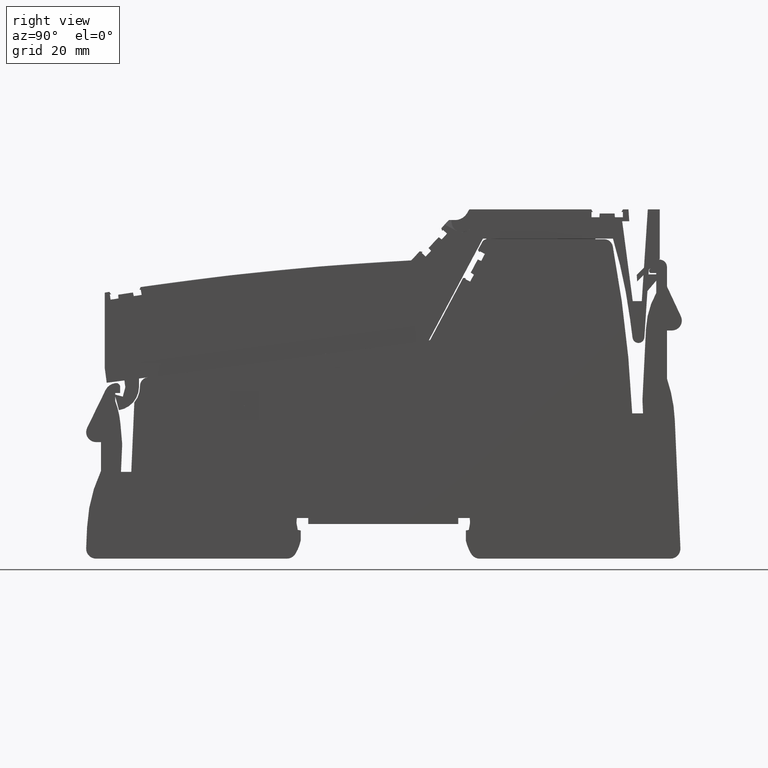
[diagram: clean part render]
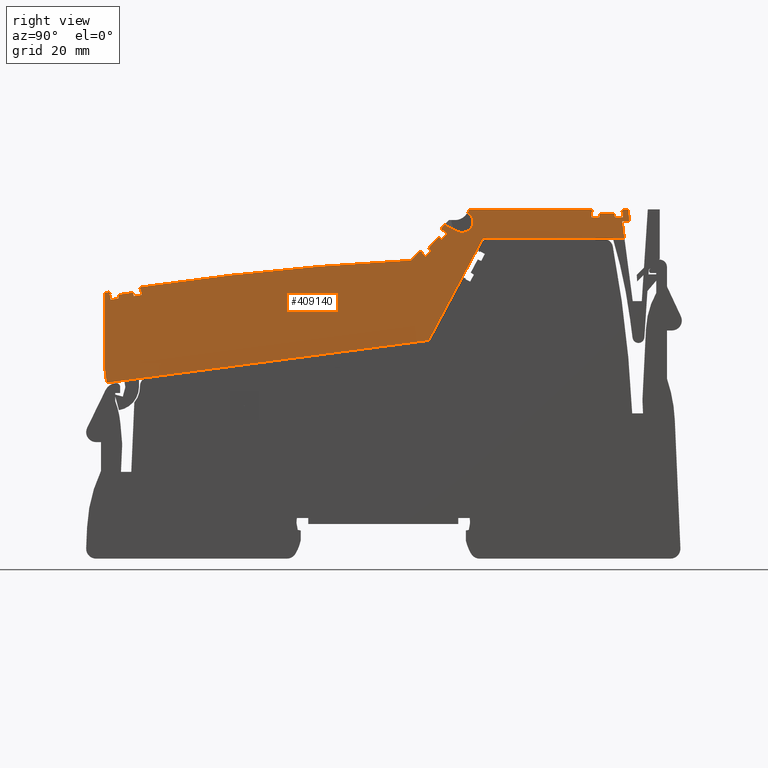
[diagram: same view with one face highlighted and labeled with its STEP entity id]
A machine part, right view. The second image highlights one B-rep face of the part: STEP entity #409140.
In plain terms, the highlighted planar face has unit normal (1, -0, 0).
Its self-contained STEP definition (entity closure, byte-faithful):
#405040=CARTESIAN_POINT('',(82.6815349965882,79.1094320933787,-35.425));
#405050=DIRECTION('',(0.,-0.,1.));
#405060=DIRECTION('',(0.99144486137381,0.130526192220052,0.));
#405070=AXIS2_PLACEMENT_3D('',#405040,#405050,#405060);
#405080=PLANE('',#405070);
#405090=CARTESIAN_POINT('',(7.105427357601E-15,123.952271663143,-35.425)
);
#405100=DIRECTION('',(0.887010833178214,-0.461748613235049,0.));
#405110=VECTOR('',#405100,1.);
#405120=LINE('',#405090,#405110);
#405130=CARTESIAN_POINT('',(81.7124060542132,81.4154854500133,-35.425));
#405140=VERTEX_POINT('',#405130);
#405150=CARTESIAN_POINT('',(84.2556033003072,80.0915807606427,-35.425));
#405160=VERTEX_POINT('',#405150);
#405170=EDGE_CURVE('',#405140,#405160,#405120,.T.);
#405180=ORIENTED_EDGE('',*,*,#405170,.F.);
#405190=CARTESIAN_POINT('',(85.2483628187626,81.9986540519759,-35.425));
#405200=DIRECTION('',(-8.85927774418128E-33,0.,1.));
#405210=DIRECTION('',(0.99144486137381,0.130526192220052,
8.7834853949519E-33));
#405220=AXIS2_PLACEMENT_3D('',#405190,#405200,#405210);
#405230=CIRCLE('',#405220,2.15000000000011);
#405240=CARTESIAN_POINT('',(86.323362818763,83.8606086701124,-35.425));
#405250=VERTEX_POINT('',#405240);
#405260=EDGE_CURVE('',#405160,#405250,#405230,.T.);
#405270=ORIENTED_EDGE('',*,*,#405260,.F.);
#405280=CARTESIAN_POINT('',(37.9064178286642,1.4210854715202E-14,-35.425
));
#405290=DIRECTION('',(-0.500000000000028,-0.866025403784423,0.));
#405300=VECTOR('',#405290,1.);
#405310=LINE('',#405280,#405300);
#405320=CARTESIAN_POINT('',(86.6847904689085,84.4866197234246,-35.425));
#405330=VERTEX_POINT('',#405320);
#405340=EDGE_CURVE('',#405330,#405250,#405310,.T.);
#405350=ORIENTED_EDGE('',*,*,#405340,.T.);
#405360=CARTESIAN_POINT('',(7.105427357601E-15,84.4866197234246,-35.425)
);
#405370=DIRECTION('',(-1.,0.,0.));
#405380=VECTOR('',#405370,1.);
#405390=LINE('',#405360,#405380);
#405400=CARTESIAN_POINT('',(111.280097074187,84.4866197234246,-35.425));
#405410=VERTEX_POINT('',#405400);
#405420=EDGE_CURVE('',#405410,#405330,#405390,.T.);
#405430=ORIENTED_EDGE('',*,*,#405420,.T.);
#405440=CARTESIAN_POINT('',(117.476804588516,73.7536074689866,-35.425));
#405450=DIRECTION('',(0.500000000000819,-0.866025403783966,
3.34767537788399E-17));
#405460=VECTOR('',#405450,1.);
#405470=LINE('',#405440,#405460);
#405480=CARTESIAN_POINT('',(111.586092716858,83.9566197234264,-35.425));
#405490=VERTEX_POINT('',#405480);
#405500=EDGE_CURVE('',#405410,#405490,#405470,.T.);
#405510=ORIENTED_EDGE('',*,*,#405500,.F.);
#405520=CARTESIAN_POINT('',(70.5167661636283,83.9566197232154,-35.425));
#405530=DIRECTION('',(-1.,-5.1373627574236E-12,-1.14423563262215E-17));
#405540=VECTOR('',#405530,1.);
#405550=LINE('',#405520,#405540);
#405560=CARTESIAN_POINT('',(111.313785095723,83.956619723425,-35.425));
#405570=VERTEX_POINT('',#405560);
#405580=EDGE_CURVE('',#405490,#405570,#405550,.T.);
#405590=ORIENTED_EDGE('',*,*,#405580,.F.);
#405600=CARTESIAN_POINT('',(111.313785095715,1.4210854715202E-14,-35.425
));
#405610=DIRECTION('',(-9.34252675222069E-14,-1.,0.));
#405620=VECTOR('',#405610,1.);
#405630=LINE('',#405600,#405620);
#405640=CARTESIAN_POINT('',(111.313785095723,82.8866197234248,-35.425));
#405650=VERTEX_POINT('',#405640);
#405660=EDGE_CURVE('',#405570,#405650,#405630,.T.);
#405670=ORIENTED_EDGE('',*,*,#405660,.F.);
#405680=CARTESIAN_POINT('',(7.105427357601E-15,82.8866197234116,-35.425)
);
#405690=DIRECTION('',(1.,1.19154686117895E-13,0.));
#405700=VECTOR('',#405690,1.);
#405710=LINE('',#405680,#405700);
#405720=CARTESIAN_POINT('',(112.910668598078,82.886619723425,-35.425));
#405730=VERTEX_POINT('',#405720);
#405740=EDGE_CURVE('',#405650,#405730,#405710,.T.);
#405750=ORIENTED_EDGE('',*,*,#405740,.F.);
#405760=CARTESIAN_POINT('',(105.659029014286,1.4210854715202E-14,-35.425
));
#405770=DIRECTION('',(0.087155742747754,0.996194698091737,0.));
#405780=VECTOR('',#405770,1.);
#405790=LINE('',#405760,#405780);
#405800=CARTESIAN_POINT('',(112.976285095723,83.6366197234249,-35.425));
#405810=VERTEX_POINT('',#405800);
#405820=EDGE_CURVE('',#405730,#405810,#405790,.T.);
#405830=ORIENTED_EDGE('',*,*,#405820,.F.);
#405840=CARTESIAN_POINT('',(70.5588949628286,83.6366197234257,-35.425));
#405850=DIRECTION('',(1.,-1.86795023893183E-14,1.14423563262215E-17));
#405860=VECTOR('',#405850,1.);
#405870=LINE('',#405840,#405860);
#405880=CARTESIAN_POINT('',(115.976285095723,83.6366197234249,-35.425));
#405890=VERTEX_POINT('',#405880);
#405900=EDGE_CURVE('',#405810,#405890,#405870,.T.);
#405910=ORIENTED_EDGE('',*,*,#405900,.F.);
#405920=CARTESIAN_POINT('',(123.293541177125,1.4210854715202E-14,-35.425
));
#405930=DIRECTION('',(0.0871557427473462,-0.996194698091773,0.));
#405940=VECTOR('',#405930,1.);
#405950=LINE('',#405920,#405940);
#405960=CARTESIAN_POINT('',(116.041901593367,82.8866197234248,-35.425));
#405970=VERTEX_POINT('',#405960);
#405980=EDGE_CURVE('',#405890,#405970,#405950,.T.);
#405990=ORIENTED_EDGE('',*,*,#405980,.F.);
#406000=CARTESIAN_POINT('',(7.105427357601E-15,82.8866197234154,-35.425)
);
#406010=DIRECTION('',(1.,8.06021915877864E-14,0.));
#406020=VECTOR('',#406010,1.);
#406030=LINE('',#406000,#406020);
#406040=CARTESIAN_POINT('',(117.638785095723,82.8866197234249,-35.425));
#406050=VERTEX_POINT('',#406040);
#406060=EDGE_CURVE('',#405970,#406050,#406030,.T.);
#406070=ORIENTED_EDGE('',*,*,#406060,.F.);
#406080=CARTESIAN_POINT('',(117.638785095727,1.4210854715202E-14,-35.425
));
#406090=DIRECTION('',(-5.49282841433296E-14,1.,0.));
#406100=VECTOR('',#406090,1.);
#406110=LINE('',#406080,#406100);
#406120=CARTESIAN_POINT('',(117.638785095723,83.9566197234248,-35.425));
#406130=VERTEX_POINT('',#406120);
#406140=EDGE_CURVE('',#406050,#406130,#406110,.T.);
#406150=ORIENTED_EDGE('',*,*,#406140,.F.);
#406160=CARTESIAN_POINT('',(70.5167661635693,83.9566197236636,-35.425));
#406170=DIRECTION('',(-1.,5.06689135093552E-12,-1.14423563262215E-17));
#406180=VECTOR('',#406170,1.);
#406190=LINE('',#406160,#406180);
#406200=CARTESIAN_POINT('',(117.366477474588,83.9566197234262,-35.425));
#406210=VERTEX_POINT('',#406200);
#406220=EDGE_CURVE('',#406130,#406210,#406190,.T.);
#406230=ORIENTED_EDGE('',*,*,#406220,.F.);
#406240=CARTESIAN_POINT('',(110.982106139763,72.8985641971313,-35.425));
#406250=DIRECTION('',(0.500000000000253,0.866025403784292,
-2.20343974524871E-17));
#406260=VECTOR('',#406250,1.);
#406270=LINE('',#406240,#406260);
#406280=CARTESIAN_POINT('',(117.672473117258,84.4866197234247,-35.425));
#406290=VERTEX_POINT('',#406280);
#406300=EDGE_CURVE('',#406210,#406290,#406270,.T.);
#406310=ORIENTED_EDGE('',*,*,#406300,.F.);
#406320=CARTESIAN_POINT('',(70.4469903398795,84.4866197234245,-35.425));
#406330=DIRECTION('',(-1.,-3.33066907387547E-15,-1.14423563262215E-17));
#406340=VECTOR('',#406330,1.);
#406350=LINE('',#406320,#406340);
#406360=CARTESIAN_POINT('',(118.776285095723,84.4866197234247,-35.425));
#406370=VERTEX_POINT('',#406360);
#406380=EDGE_CURVE('',#406370,#406290,#406350,.T.);
#406390=ORIENTED_EDGE('',*,*,#406380,.T.);
#406400=CARTESIAN_POINT('',(119.46262829087,74.0150461191697,-35.425));
#406410=DIRECTION('',(-0.0654031292301207,0.997858923238605,
-1.07067800097519E-18));
#406420=VECTOR('',#406410,1.);
#406430=LINE('',#406400,#406420);
#406440=CARTESIAN_POINT('',(118.933589406479,82.0866197234258,-35.425));
#406450=VERTEX_POINT('',#406440);
#406460=EDGE_CURVE('',#406450,#406370,#406430,.T.);
#406470=ORIENTED_EDGE('',*,*,#406460,.T.);
#406480=CARTESIAN_POINT('',(70.7629563340898,82.0866197234204,-35.425));
#406490=DIRECTION('',(-1.,-1.11688436277291E-13,-1.14423563262215E-17));
#406500=VECTOR('',#406490,1.);
#406510=LINE('',#406480,#406500);
#406520=CARTESIAN_POINT('',(117.512908656979,82.0866197234256,-35.425));
#406530=VERTEX_POINT('',#406520);
#406540=EDGE_CURVE('',#406450,#406530,#406510,.T.);
#406550=ORIENTED_EDGE('',*,*,#406540,.F.);
#406560=CARTESIAN_POINT('',(128.319817162075,1.4210854715202E-14,-35.425
));
#406570=DIRECTION('',(0.130526192220052,-0.99144486137381,0.));
#406580=VECTOR('',#406570,1.);
#406590=LINE('',#406560,#406580);
#406600=CARTESIAN_POINT('',(117.973692398535,78.5866197234247,-35.425));
#406610=VERTEX_POINT('',#406600);
#406620=EDGE_CURVE('',#406530,#406610,#406590,.T.);
#406630=ORIENTED_EDGE('',*,*,#406620,.F.);
#406640=CARTESIAN_POINT('',(71.2237400756451,78.5866197234246,-35.425));
#406650=DIRECTION('',(1.,0.,1.14423563262215E-17));
#406660=VECTOR('',#406650,1.);
#406670=LINE('',#406640,#406660);
#406680=CARTESIAN_POINT('',(89.4233780495348,78.5866197234247,-35.425));
#406690=VERTEX_POINT('',#406680);
#406700=EDGE_CURVE('',#406690,#406610,#406670,.T.);
#406710=ORIENTED_EDGE('',*,*,#406700,.T.);
#406720=CARTESIAN_POINT('',(84.5486179871549,69.4185294618935,-35.425));
#406730=DIRECTION('',(0.469471562785891,0.882947592858927,
1.98252351633153E-18));
#406740=VECTOR('',#406730,1.);
#406750=LINE('',#406720,#406740);
#406760=CARTESIAN_POINT('',(78.5141517634814,58.0693491307922,-35.425));
#406770=VERTEX_POINT('',#406760);
#406780=EDGE_CURVE('',#406770,#406690,#406750,.T.);
#406790=ORIENTED_EDGE('',*,*,#406780,.T.);
#406800=CARTESIAN_POINT('',(74.0030776442306,57.4754549561903,-35.425));
#406810=DIRECTION('',(0.991444861373789,0.130526192220212,
2.03025052721141E-32));
#406820=VECTOR('',#406810,1.);
#406830=LINE('',#406800,#406820);
#406840=CARTESIAN_POINT('',(13.5745133434982,49.5198835403683,-35.425));
#406850=VERTEX_POINT('',#406840);
#406860=EDGE_CURVE('',#406850,#406770,#406830,.T.);
#406870=ORIENTED_EDGE('',*,*,#406860,.T.);
#406880=CARTESIAN_POINT('',(12.2086310606799,59.8947895075835,-35.425));
#406890=DIRECTION('',(0.130526192220052,-0.99144486137381,
-3.08148791101958E-32));
#406900=VECTOR('',#406890,1.);
#406910=LINE('',#406880,#406900);
#406920=CARTESIAN_POINT('',(13.1829347668366,52.4942181245002,-35.425));
#406930=VERTEX_POINT('',#406920);
#406940=EDGE_CURVE('',#406930,#406850,#406910,.T.);
#406950=ORIENTED_EDGE('',*,*,#406940,.T.);
#406960=CARTESIAN_POINT('',(13.1829347668366,60.0230590239077,-35.425));
#406970=DIRECTION('',(8.32667268468867E-17,-1.,-1.38777878078145E-17));
#406980=VECTOR('',#406970,1.);
#406990=LINE('',#406960,#406980);
#407000=CARTESIAN_POINT('',(13.1829347668366,67.7012444287141,-35.425));
#407010=VERTEX_POINT('',#407000);
#407020=EDGE_CURVE('',#407010,#406930,#406990,.T.);
#407030=ORIENTED_EDGE('',*,*,#407020,.T.);
#407040=CARTESIAN_POINT('',(104.084452057128,-500.06799932646,-35.425));
#407050=DIRECTION('',(-8.85927774418128E-33,0.,1.));
#407060=DIRECTION('',(0.99144486137381,0.130526192220052,0.));
#407070=AXIS2_PLACEMENT_3D('',#407040,#407050,#407060);
#407080=CIRCLE('',#407070,575.);
#407090=CARTESIAN_POINT('',(14.0966316585303,67.8467761283694,-35.425));
#407100=VERTEX_POINT('',#407090);
#407110=EDGE_CURVE('',#407100,#407010,#407080,.T.);
#407120=ORIENTED_EDGE('',*,*,#407110,.T.);
#407130=CARTESIAN_POINT('',(19.676851164994,60.8779993368489,-35.425));
#407140=DIRECTION('',(0.625050010517978,-0.780584706711242,
2.1035385032723E-17));
#407150=VECTOR('',#407140,1.);
#407160=LINE('',#407130,#407150);
#407170=CARTESIAN_POINT('',(14.472765890979,67.3770463074278,-35.425));
#407180=VERTEX_POINT('',#407170);
#407190=EDGE_CURVE('',#407100,#407180,#407160,.T.);
#407200=ORIENTED_EDGE('',*,*,#407190,.F.);
#407210=CARTESIAN_POINT('',(71.551517232091,76.0969050392932,-35.425));
#407220=DIRECTION('',(-0.988531191076977,-0.151016834385886,
3.70508301110601E-19));
#407230=VECTOR('',#407220,1.);
#407240=LINE('',#407210,#407230);
#407250=CARTESIAN_POINT('',(14.2035813139184,67.335923272505,-35.425));
#407260=VERTEX_POINT('',#407250);
#407270=EDGE_CURVE('',#407180,#407260,#407240,.T.);
#407280=ORIENTED_EDGE('',*,*,#407270,.F.);
#407290=CARTESIAN_POINT('',(24.4904170405679,1.4210854715202E-14,-35.425
));
#407300=DIRECTION('',(0.151016834388983,-0.988531191076503,0.));
#407310=VECTOR('',#407300,1.);
#407320=LINE('',#407290,#407310);
#407330=CARTESIAN_POINT('',(14.3651693267146,66.278194898053,-35.425));
#407340=VERTEX_POINT('',#407330);
#407350=EDGE_CURVE('',#407260,#407340,#407320,.T.);
#407360=ORIENTED_EDGE('',*,*,#407350,.F.);
#407370=CARTESIAN_POINT('',(7.105427357601E-15,64.0836436114932,-35.425)
);
#407380=DIRECTION('',(0.988531191076512,0.151016834388925,0.));
#407390=VECTOR('',#407380,1.);
#407400=LINE('',#407370,#407390);
#407410=CARTESIAN_POINT('',(15.9437384773084,66.5193511894665,-35.425));
#407420=VERTEX_POINT('',#407410);
#407430=EDGE_CURVE('',#407340,#407420,#407400,.T.);
#407440=ORIENTED_EDGE('',*,*,#407430,.F.);
#407450=CARTESIAN_POINT('',(20.2288651749482,1.4210854715202E-14,-35.425
));
#407460=DIRECTION('',(-0.0642859995531953,0.997931515817316,0.));
#407470=VECTOR('',#407460,1.);
#407480=LINE('',#407450,#407470);
#407490=CARTESIAN_POINT('',(15.8953398060877,67.2706587785318,-35.425));
#407500=VERTEX_POINT('',#407490);
#407510=EDGE_CURVE('',#407420,#407500,#407480,.T.);
#407520=ORIENTED_EDGE('',*,*,#407510,.F.);
#407530=CARTESIAN_POINT('',(71.5932945613604,75.7795747186763,-35.425));
#407540=DIRECTION('',(0.988531191076507,0.151016834388962,
-3.70508301168148E-19));
#407550=VECTOR('',#407540,1.);
#407560=LINE('',#407530,#407550);
#407570=CARTESIAN_POINT('',(18.8609333793172,67.7237092816987,-35.425));
#407580=VERTEX_POINT('',#407570);
#407590=EDGE_CURVE('',#407500,#407580,#407560,.T.);
#407600=ORIENTED_EDGE('',*,*,#407590,.F.);
#407610=CARTESIAN_POINT('',(35.352486206355,1.4210854715202E-14,-35.425)
);
#407620=DIRECTION('',(0.236598339928087,-0.971607547080236,0.));
#407630=VECTOR('',#407620,1.);
#407640=LINE('',#407610,#407630);
#407650=CARTESIAN_POINT('',(19.0390599596794,66.9922200841493,-35.425));
#407660=VERTEX_POINT('',#407650);
#407670=EDGE_CURVE('',#407580,#407660,#407640,.T.);
#407680=ORIENTED_EDGE('',*,*,#407670,.F.);
#407690=CARTESIAN_POINT('',(7.105427357601E-15,64.0836436114918,-35.425)
);
#407700=DIRECTION('',(0.9885311910765,0.151016834389004,0.));
#407710=VECTOR('',#407700,1.);
#407720=LINE('',#407690,#407710);
#407730=CARTESIAN_POINT('',(20.6176291102735,67.2333763755631,-35.425));
#407740=VERTEX_POINT('',#407730);
#407750=EDGE_CURVE('',#407660,#407740,#407720,.T.);
#407760=ORIENTED_EDGE('',*,*,#407750,.F.);
#407770=CARTESIAN_POINT('',(30.8887988590628,1.4210854715202E-14,-35.425
));
#407780=DIRECTION('',(-0.15101683438897,0.988531191076505,0.));
#407790=VECTOR('',#407780,1.);
#407800=LINE('',#407770,#407790);
#407810=CARTESIAN_POINT('',(20.4560410974773,68.2911047500148,-35.425));
#407820=VERTEX_POINT('',#407810);
#407830=EDGE_CURVE('',#407740,#407820,#407800,.T.);
#407840=ORIENTED_EDGE('',*,*,#407830,.F.);
#407850=CARTESIAN_POINT('',(71.5515172321112,76.0969050391398,-35.425));
#407860=DIRECTION('',(-0.988531191077486,-0.151016834382553,
3.70508301048238E-19));
#407870=VECTOR('',#407860,1.);
#407880=LINE('',#407850,#407870);
#407890=CARTESIAN_POINT('',(20.186856520418,68.2499817150929,-35.425));
#407900=VERTEX_POINT('',#407890);
#407910=EDGE_CURVE('',#407820,#407900,#407880,.T.);
#407920=ORIENTED_EDGE('',*,*,#407910,.F.);
#407930=CARTESIAN_POINT('',(17.182413559422,60.5496003959994,-35.425));
#407940=DIRECTION('',(0.363481180558057,0.931601541100122,
-1.0997552478088E-17));
#407950=VECTOR('',#407940,1.);
#407960=LINE('',#407930,#407950);
#407970=CARTESIAN_POINT('',(20.4055873620426,68.8105884260946,-35.425));
#407980=VERTEX_POINT('',#407970);
#407990=EDGE_CURVE('',#407900,#407980,#407960,.T.);
#408000=ORIENTED_EDGE('',*,*,#407990,.F.);
#408010=CARTESIAN_POINT('',(104.084452057128,-500.06799932646,-35.425));
#408020=DIRECTION('',(-8.85927774418128E-33,0.,1.));
#408030=DIRECTION('',(0.99144486137381,0.130526192220052,0.));
#408040=AXIS2_PLACEMENT_3D('',#408010,#408020,#408030);
#408050=CIRCLE('',#408040,575.);
#408060=CARTESIAN_POINT('',(74.9791020504755,74.1949009213182,-35.425));
#408070=VERTEX_POINT('',#408060);
#408080=EDGE_CURVE('',#408070,#407980,#408050,.T.);
#408090=ORIENTED_EDGE('',*,*,#408080,.T.);
#408100=CARTESIAN_POINT('',(72.1949828292245,71.2092985834693,-35.425));
#408110=DIRECTION('',(-0.681998360062363,-0.731353701619297,
-2.53969612628868E-19));
#408120=VECTOR('',#408110,1.);
#408130=LINE('',#408100,#408120);
#408140=CARTESIAN_POINT('',(76.688235497364,76.0277221510188,-35.425));
#408150=VERTEX_POINT('',#408140);
#408160=EDGE_CURVE('',#408150,#408070,#408130,.T.);
#408170=ORIENTED_EDGE('',*,*,#408160,.T.);
#408180=CARTESIAN_POINT('',(71.3998893619735,77.248633057342,-35.425));
#408190=DIRECTION('',(0.974370064785244,-0.224951054343824,
3.6059170670998E-17));
#408200=VECTOR('',#408190,1.);
#408210=LINE('',#408180,#408200);
#408220=CARTESIAN_POINT('',(77.2845414857078,75.8900540661325,-35.425));
#408230=VERTEX_POINT('',#408220);
#408240=EDGE_CURVE('',#408150,#408230,#408210,.T.);
#408250=ORIENTED_EDGE('',*,*,#408240,.F.);
#408260=CARTESIAN_POINT('',(72.2846363775469,70.5283122750789,-35.425));
#408270=DIRECTION('',(-0.681998360064581,-0.731353701617229,
-2.53969612900505E-19));
#408280=VECTOR('',#408270,1.);
#408290=LINE('',#408260,#408280);
#408300=CARTESIAN_POINT('',(77.0988281346601,75.6909008794362,-35.425));
#408310=VERTEX_POINT('',#408300);
#408320=EDGE_CURVE('',#408230,#408310,#408290,.T.);
#408330=ORIENTED_EDGE('',*,*,#408320,.F.);
#408340=CARTESIAN_POINT('',(7.105427357601E-15,147.586721238526,-35.425)
);
#408350=DIRECTION('',(0.731353701619242,-0.681998360062422,0.));
#408360=VECTOR('',#408350,1.);
#408370=LINE('',#408340,#408360);
#408380=CARTESIAN_POINT('',(77.8813765953927,74.9611626341694,-35.425));
#408390=VERTEX_POINT('',#408380);
#408400=EDGE_CURVE('',#408310,#408390,#408370,.T.);
#408410=ORIENTED_EDGE('',*,*,#408400,.F.);
#408420=CARTESIAN_POINT('',(7.97896156459621,1.4210854715202E-14,-35.425
));
#408430=DIRECTION('',(0.681998360062575,0.731353701619099,0.));
#408440=VECTOR('',#408430,1.);
#408450=LINE('',#408420,#408440);
#408460=CARTESIAN_POINT('',(78.9704485252099,76.1290492946715,-35.425));
#408470=VERTEX_POINT('',#408460);
#408480=EDGE_CURVE('',#408390,#408470,#408450,.T.);
#408490=ORIENTED_EDGE('',*,*,#408480,.F.);
#408500=CARTESIAN_POINT('',(147.517352398626,1.4210854715202E-14,-35.425
));
#408510=DIRECTION('',(-0.669130606358558,0.743144825477665,0.));
#408520=VECTOR('',#408510,1.);
#408530=LINE('',#408500,#408520);
#408540=CARTESIAN_POINT('',(78.4666835927825,76.6885369331583,-35.425));
#408550=VERTEX_POINT('',#408540);
#408560=EDGE_CURVE('',#408470,#408550,#408530,.T.);
#408570=ORIENTED_EDGE('',*,*,#408560,.F.);
#408580=CARTESIAN_POINT('',(72.338766821823,70.1171507303451,-35.425));
#408590=DIRECTION('',(0.681998360062455,0.731353701619211,
2.53969612640089E-19));
#408600=VECTOR('',#408590,1.);
#408610=LINE('',#408580,#408600);
#408620=CARTESIAN_POINT('',(80.5126786729696,78.8825980380156,-35.425));
#408630=VERTEX_POINT('',#408620);
#408640=EDGE_CURVE('',#408550,#408630,#408610,.T.);
#408650=ORIENTED_EDGE('',*,*,#408640,.F.);
#408660=CARTESIAN_POINT('',(7.105427357601E-15,141.785996636754,-35.425)
);
#408670=DIRECTION('',(0.788010753606755,-0.615661475325616,0.));
#408680=VECTOR('',#408670,1.);
#408690=LINE('',#408660,#408680);
#408700=CARTESIAN_POINT('',(81.1059442929708,78.4190881364082,-35.425));
#408710=VERTEX_POINT('',#408700);
#408720=EDGE_CURVE('',#408630,#408710,#408690,.T.);
#408730=ORIENTED_EDGE('',*,*,#408720,.F.);
#408740=CARTESIAN_POINT('',(7.9789615646208,1.4210854715202E-14,-35.425)
);
#408750=DIRECTION('',(0.681998360062451,0.731353701619215,0.));
#408760=VECTOR('',#408750,1.);
#408770=LINE('',#408740,#408760);
#408780=CARTESIAN_POINT('',(82.195016222788,79.5869747969106,-35.425));
#408790=VERTEX_POINT('',#408780);
#408800=EDGE_CURVE('',#408710,#408790,#408770,.T.);
#408810=ORIENTED_EDGE('',*,*,#408800,.F.);
#408820=CARTESIAN_POINT('',(7.105427357601E-15,156.235067429974,-35.425)
);
#408830=DIRECTION('',(-0.731353701619242,0.681998360062422,0.));
#408840=VECTOR('',#408830,1.);
#408850=LINE('',#408820,#408840);
#408860=CARTESIAN_POINT('',(81.4124677620555,80.3167130421774,-35.425));
#408870=VERTEX_POINT('',#408860);
#408880=EDGE_CURVE('',#408790,#408870,#408850,.T.);
#408890=ORIENTED_EDGE('',*,*,#408880,.F.);
#408900=CARTESIAN_POINT('',(72.2846363775451,70.5283122750928,-35.425));
#408910=DIRECTION('',(-0.681998360064199,-0.731353701617584,
-2.53969612853764E-19));
#408920=VECTOR('',#408910,1.);
#408930=LINE('',#408900,#408920);
#408940=CARTESIAN_POINT('',(81.2267544110084,80.1175598554816,-35.425));
#408950=VERTEX_POINT('',#408940);
#408960=EDGE_CURVE('',#408870,#408950,#408930,.T.);
#408970=ORIENTED_EDGE('',*,*,#408960,.F.);
#408980=CARTESIAN_POINT('',(84.4997434735127,69.4120950101042,-35.425));
#408990=DIRECTION('',(-0.29237170472236,0.956304755963151,
5.82816236513809E-18));
#409000=VECTOR('',#408990,1.);
#409010=LINE('',#408980,#409000);
#409020=CARTESIAN_POINT('',(81.0478254756385,80.7028100322594,-35.425));
#409030=VERTEX_POINT('',#409020);
#409040=EDGE_CURVE('',#408950,#409030,#409010,.T.);
#409050=ORIENTED_EDGE('',*,*,#409040,.F.);
#409060=CARTESIAN_POINT('',(5.79123762688281,1.4210854715202E-14,-35.425
));
#409070=DIRECTION('',(0.681998360062363,0.731353701619297,0.));
#409080=VECTOR('',#409070,1.);
#409090=LINE('',#409060,#409080);
#409100=EDGE_CURVE('',#409030,#405140,#409090,.T.);
#409110=ORIENTED_EDGE('',*,*,#409100,.F.);
#409120=EDGE_LOOP('',(#409110,#409050,#408970,#408890,#408810,#408730,
#408650,#408570,#408490,#408410,#408330,#408250,#408170,#408090,#408000,
#407920,#407840,#407760,#407680,#407600,#407520,#407440,#407360,#407280,
#407200,#407120,#407030,#406950,#406870,#406790,#406710,#406630,#406550,
#406470,#406390,#406310,#406230,#406150,#406070,#405990,#405910,#405830,
#405750,#405670,#405590,#405510,#405430,#405350,#405270,#405180));
#409130=FACE_OUTER_BOUND('',#409120,.T.);
#409140=ADVANCED_FACE('',(#409130),#405080,.T.);